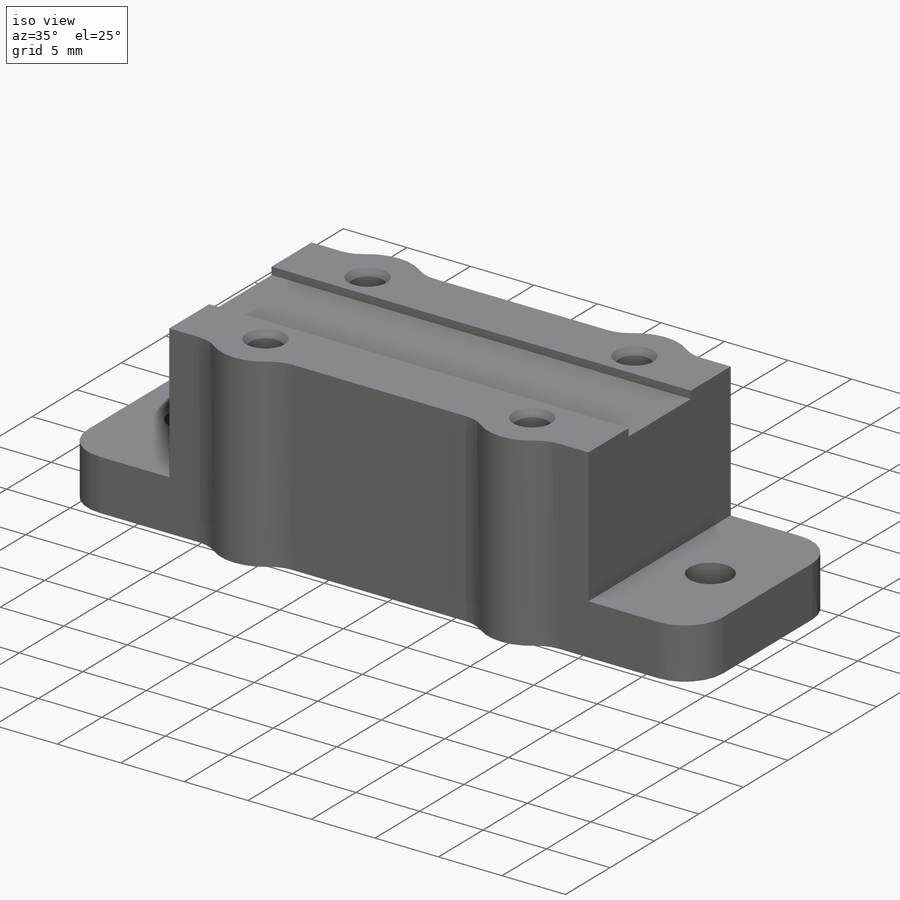
[diagram: iso view]
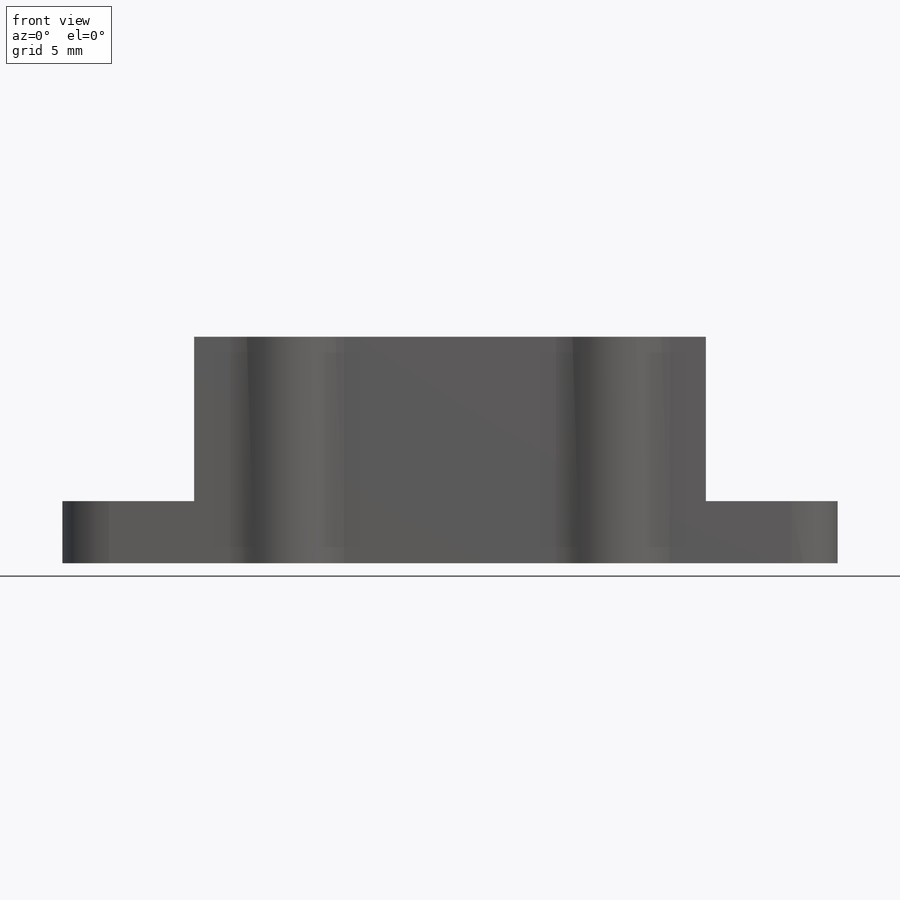
[diagram: front view]
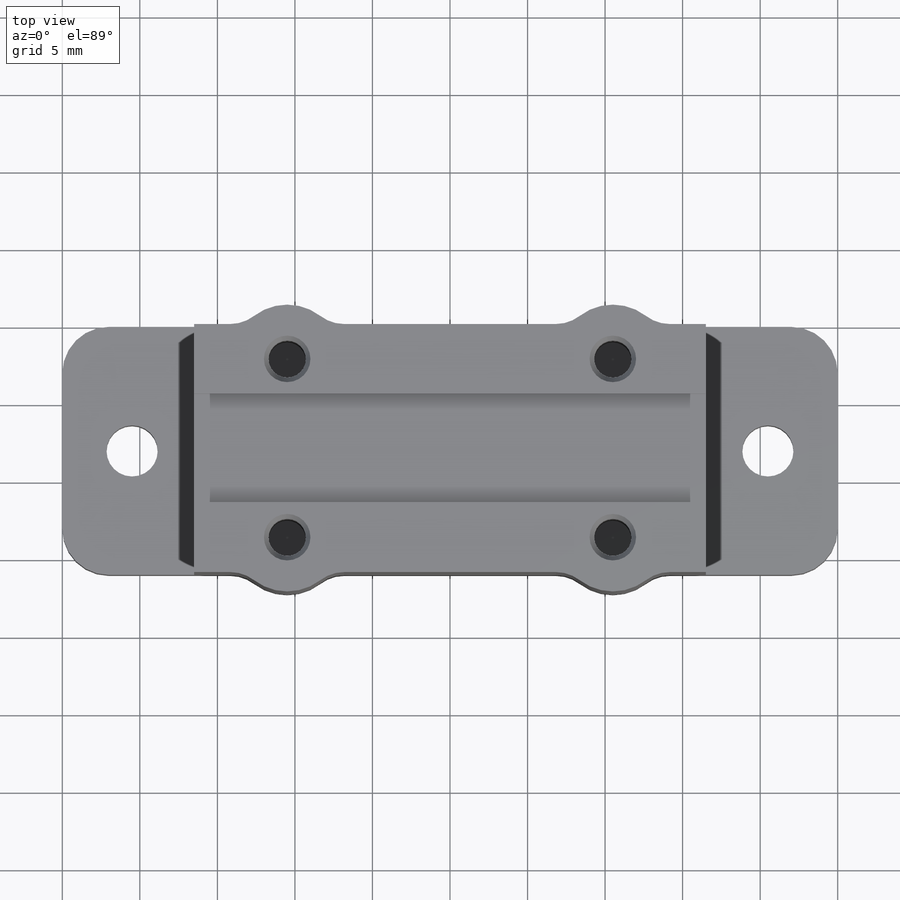
[diagram: top view]
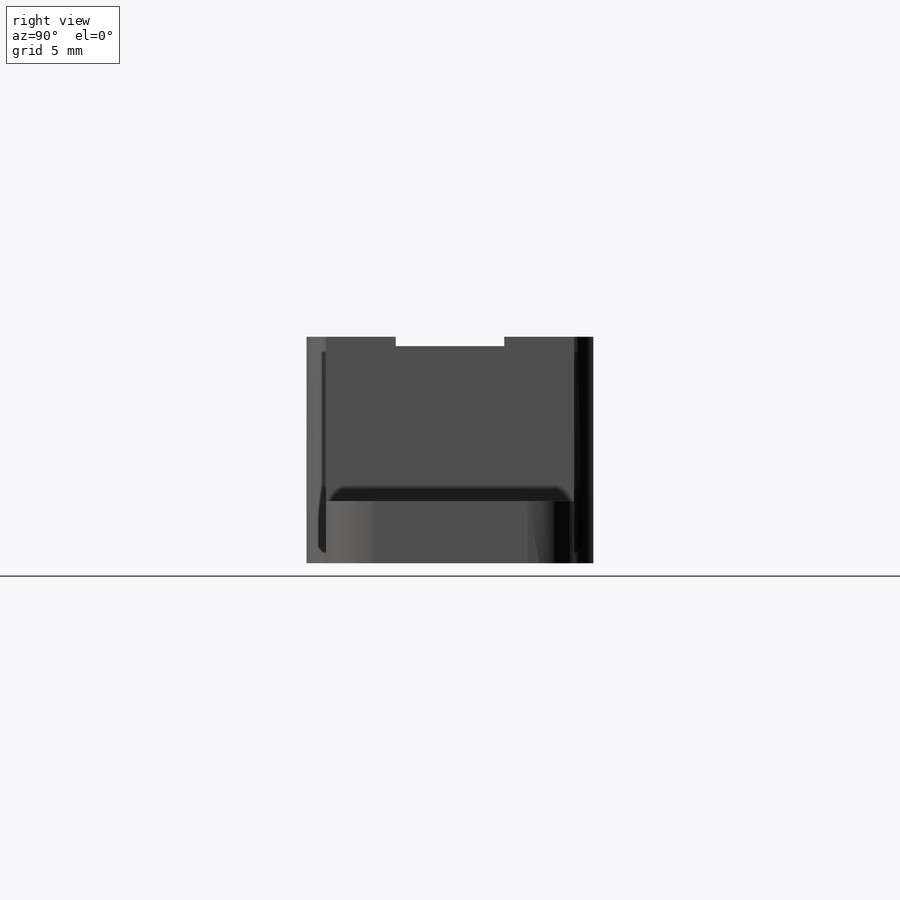
[diagram: right view]
SOLIDWORKS PART (.sldprt)
format: sldprt  version: not decoded by parser v0  size: 276,480 bytes
history: native  units: mm
features: sketch x6, plane x5, extrude x4, mirror x4, fillet x4, cut_extrude x2, material x1 (+8 scaffold rows collapsed)
feature tree (34):
  scaffold x8  (default folders/planes/origin — collapsed)
  material  "Material <sin especificar>"
  plane  "Alzado"
  plane  "Planta"
  plane  "Vista lateral"
  sketch  "Croquis1"  dims[c1.D3=3.3mm c1.D4=3.3mm c1.D1=50.0mm c1.D2=16.0mm c2.D4=20.5mm]
  extrude  "Saliente-Extruir1"  Depth=4mm
  sketch  "Croquis2"  dims[D1=8.5mm]
  extrude  "Saliente-Extruir2"  Depth=10mm
  sketch  "Croquis3"  dims[D1=3.5mm]
  extrude  "Saliente-Extruir3"  Depth=0.6mm
  sketch  "Croquis4"  dims[c1.D2=2.4mm c1.D3=2.4mm c2.D2=2.4mm c2.D3=3.0mm c2.D1=6.0mm c3.D3=3.0mm]
  cut_extrude  "Cortar-Extruir1"  Depth=8mm
  sketch  "Croquis5"  dims[D1=7.0mm D2=5.0mm]
  extrude  "Saliente-Extruir5"  [1 undecoded]
  plane  "Plano1"
  plane  "Plano2"
  mirror  "Simetría1"
  mirror  "Simetría2"
  fillet  "Redondeo1"  Radius=3mm
  fillet  "Redondeo2"  Radius=3mm
  fillet  "Redondeo3"  Radius=3mm
  fillet  "Redondeo4"  Radius=3mm
  sketch  "Croquis6"  dims[D1=3.0mm D2=~3.509607mm]
  cut_extrude  "Cortar-Extruir2"  Depth=0.6mm
  mirror  "Simetría5"
  mirror  "Simetría6"
decode coverage: 15 of 20 modeling features carry decoded parameters
note: ~ marks probable driven/reference dimensions
note: 1 parameter value undecoded
note: suppression state not decoded; provenance and decode notes live in map.json
